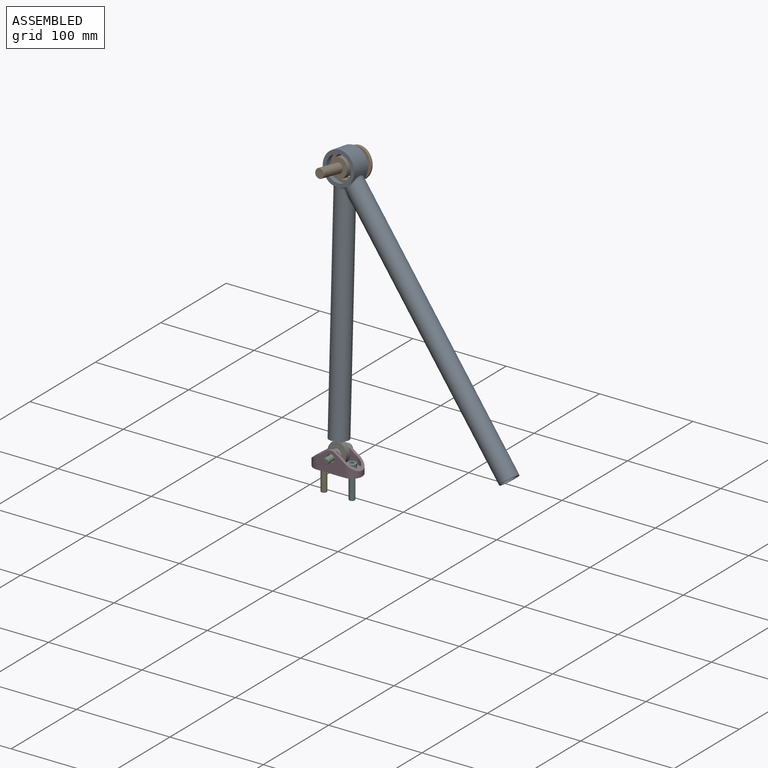
[diagram: assembled view]
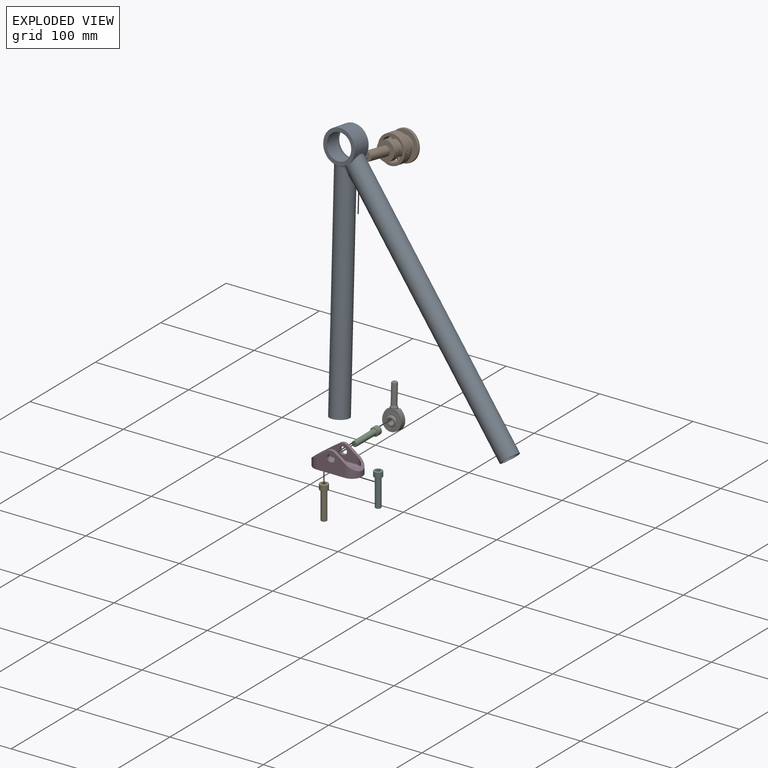
[diagram: exploded view]
GUIDED TOUR — MATED ASSEMBLY WITH SUBASSEMBLIES (Onshape document c569f687ecbf7cb7400b0703, AutoMate assembly c569f687ecbf7cb7400b0703_3082568f46f3f7c2580e98b1_21760d885458aef11b43236a_default)

This assembly has 12 component occurrences arranged in 7 top-level units: 5 individual components plus 2 subassemblies (S0, S1). The tour has two levels: first the top level, where each subassembly is treated as one rigid unit; then each subassembly is toured internally in its own section (nesting deeper than one subassembly level is flattened into its subassembly's section).

Components are labeled P0..P11 across the whole record; subassembly units are labeled S0..S1. A mate is a constraint between two units; its type names the relative motion it leaves free:
  BALL — leaves all rotation about the listed point free (a ball joint),
  CYLINDRICAL — leaves both rotation about and translation along the listed axis free,
  FASTENED — locks the two components together rigidly (no relative motion),
  PLANAR — leaves sliding in the plane through the listed point (normal = the listed direction) and rotation about that normal free,
  REVOLUTE — leaves rotation about the listed axis free (a hinge).
Axis/direction vectors are unit vectors and 'through' points are millimeter coordinates, both in the assembly's world frame.

TOP-LEVEL MATES (between units; each subassembly's internal mates are listed in its own section)
  1. FASTENED "Fastened 2": S1 <-> P3, direction (0.000, -1.000, 0.000) through (0.00, 1.00, 15.00) mm
  2. PLANAR "Planar 1": P5 <-> P7, direction (0.000, 0.000, 1.000) through (-15.00, 0.00, 5.00) mm
  3. FASTENED "Fastened 1": P5 <-> P3, direction (0.000, -1.000, 0.000) through (0.00, 11.00, 15.00) mm
  4. REVOLUTE "Revolute 1": P7 <-> P5, axis (0.000, 0.000, 1.000) through (-15.00, 0.00, 5.00) mm
  5. CYLINDRICAL "Cylindrical 1": P0 <-> S1, axis (-0.061, 0.127, 0.990) through (-0.84, 2.75, 28.66) mm
  6. REVOLUTE "Revolute 3": S0 <-> P0, axis (0.048, 0.991, -0.124) through (-15.76, 42.35, 275.18) mm

TOP-LEVEL ASSEMBLY ORDER
  1. P5 — the base component [order heuristic]
  2. S1 — core [order heuristic]
  3. P7 — core [order heuristic]
  4. P8 — core [order heuristic]
  5. P3 — core [order heuristic]
  6. S0 [order verified]
  7. P0 [order verified]
Order-tag legend:
  [order verified] — this step's position reverses a verified removal order: the component was checked to insert without passing through the ones already placed.
  [order heuristic] — the first 5 components form the assembly's core: parts whose collision-free extraction could not be verified, listed in mate-graph order.

Of the 12 component occurrences, 7 carry the full construction recipe — the FeatureScript program that regenerates the part's solid from scratch; the rest are supplied as boundary geometry only. Each toured unit is shown spotlighted twice — assembled, then exploded with a leader line back to its socket (green = recipe-attached component, orange = geometry-only, blue = subassembly unit; the rest desaturated gray).
NOTE — this tour is split across 2 documents so each fits a 32k-token context. This is document 1: the component sections continue in the remaining 1 document, each repeating the header above.
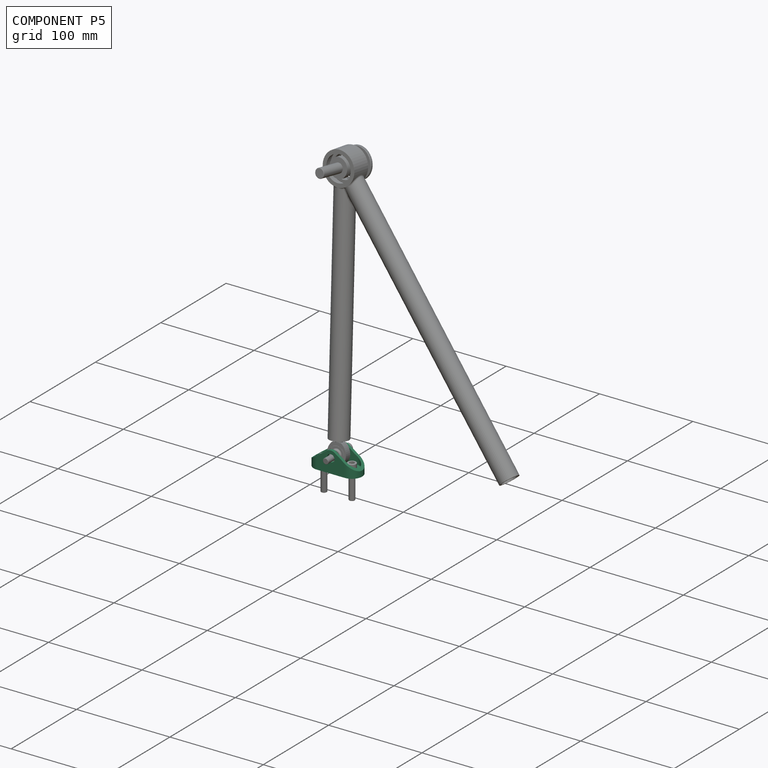
[diagram: component P5 — assembled]
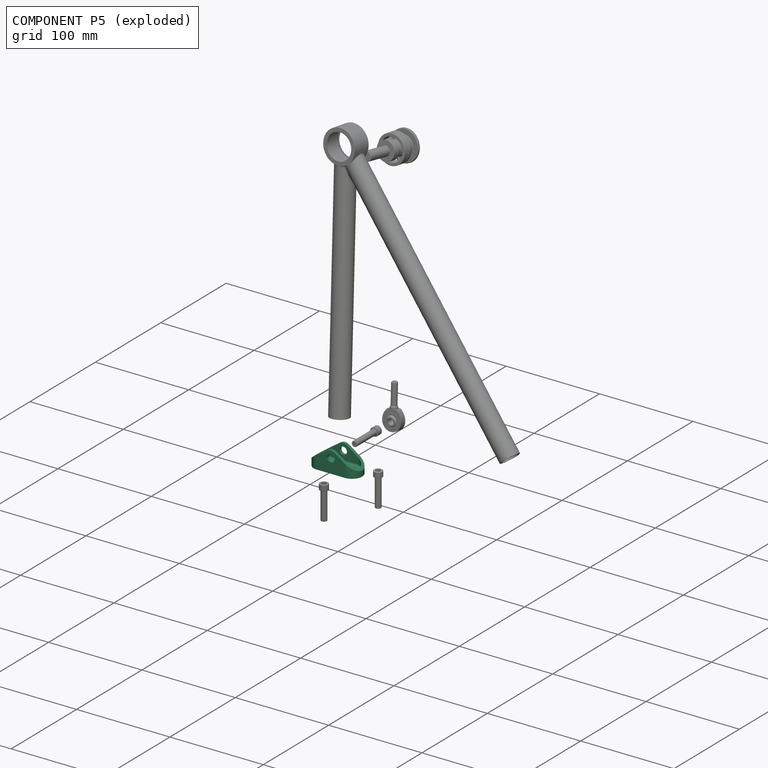
[diagram: component P5 — exploded]
COMPONENT P5 — recipe-attached (CADFS 00620207, mesh-verified: the recipe's output STEP matches this component's geometry to below the mesh-comparison resolution (tessellation chordal tolerance ~0.0911 mm)).
Held by: PLANAR mate "Planar 1" to P7; FASTENED mate "Fastened 1" to P3; REVOLUTE mate "Revolute 1" to P7.
Construction recipe (FeatureScript — the CAD program that rebuilds this solid; sketch coordinates are in the units given by the * unit suffixes, e.g. mm):

FeatureScript 1511;
import(path : "onshape/std/geometry.fs", version : "1511.0");
import(path : "onshape/std/common.fs", version : "1511.0");
const mm = millimeter;
const VERTEX = EntityType.VERTEX;
const EDGE = EntityType.EDGE;
const FACE = EntityType.FACE;
const BODY = EntityType.BODY;
function v(x, y){return vector(x, y);}
function OD(order){return orderDisambiguation(order);}
function OSD(set){return originalSetDisambiguation(set);}
function TD(topology){return topologyDisambiguation(topology);}
function TDD(query){return trueDependencyDisambiguation(query);}
function sQuery(a, b, c) {return sketchEntityQuery(a, b, c);}

annotation { "Feature Type Name" : "Feature", "Feature Type Description" : "" }
export const myFeature = defineFeature(function(context is Context, id is Id, definition is map)
    precondition{}
    {
        {
            var Q0;
            Q0=qCreatedBy(makeId("Top.planeOp"),FACE);
            var sketch = newSketch(context, id + "F0", { "sketchPlane" : qUnion([Q0])});
            skLineSegment(sketch, "E0", {"start": v(-15, 0) * mm, "end": v(15, 0) * mm});
            skArc(sketch, "E1.0.startCap", {"start": v(-15, -11) * mm, "mid": v(-26, 0) * mm, "end": v(-15, 11) * mm});
            skArc(sketch, "E1.0.endCap", {"start": v(15, 11) * mm, "mid": v(26, 0) * mm, "end": v(15, -11) * mm});
            skLineSegment(sketch, "E1.0.left", {"start": v(-15, 11) * mm, "end": v(15, 11) * mm});
            skLineSegment(sketch, "E1.0.right", {"start": v(-15, -11) * mm, "end": v(15, -11) * mm});
            skCircle(sketch, "E2", {"center": v(-15, 0) * mm, "radius": 3.09 * mm});
            skCircle(sketch, "E3", {"center": v(15, 0) * mm, "radius": 3.1 * mm});
            skCircle(sketch, "E4", {"center": v(0, 0) * mm, "radius": 7 * mm});
            skSolve(sketch);
        }
        {
            var Q0;
            Q0 = qSketchRegion(id + "F0", true);
            extrude(context, id + "F1", {"entities" : qUnion([Q0]), "depth" : 25 * mm, "offsetDistance" : 25 * mm});
        }
        {
            var Q0;
            Q0=makeQuery(id+"F1.opExtrude","SWEPT_FACE",FACE,{"disambiguationData":[OSD([sQuery(id+"F0.wireOp",EDGE,"E1.0.right")])]});
            var sketch = newSketch(context, id + "F2", { "sketchPlane" : qUnion([Q0])});
            skLineSegment(sketch, "E5", {"start": v(0, 0) * mm, "end": v(0, 15) * mm, "construction": true});
            skPoint(sketch, "E5.endSnap0", {"position": v(0, 25) * mm});
            skCircle(sketch, "E6", {"center": v(0, 15) * mm, "radius": 7.5 * mm, "construction": true});
            skLineSegment(sketch, "E7", {"start": v(-26, 25) * mm, "end": v(-26, 6) * mm});
            skLineSegment(sketch, "E8", {"start": v(-26, 6) * mm, "end": v(-4.3, 21.15) * mm});
            skLineSegment(sketch, "E9", {"start": v(-26, 25) * mm, "end": v(26, 25) * mm});
            skLineSegment(sketch, "E10", {"start": v(26, 25) * mm, "end": v(26, 6) * mm});
            skLineSegment(sketch, "E11", {"start": v(26, 6) * mm, "end": v(4.3, 21.15) * mm});
            skArc(sketch, "E12", {"start": v(4.3, 21.15) * mm, "mid": v(0, 22.5) * mm, "end": v(-4.3, 21.15) * mm});
            skCircle(sketch, "E13", {"center": v(0, 15) * mm, "radius": 4 * mm});
            skSolve(sketch);
        }
        {
            var Q0;
            {var subQ0=sQuery(id+"F2.wireOp",EDGE,"E12");Q0=makeQuery(id+"F2.imprint","IMPRINT",FACE,{"disambiguationData":[TD([[makeQuery(id+"F2.imprint","IMPRINT",EDGE,{"derivedFrom":subQ0}),-1.0]])]});}
            var Q1;
            Q1 = qSketchRegion(id + "F2", true);
            extrude(context, id + "F3", {"entities" : qUnion([Q0, Q1]), "operationType" : NewBodyOperationType.REMOVE, "oppositeDirection" : true, "depth" : 25 * mm, "offsetDistance" : 25 * mm});
        }
        {
            var Q0;
            Q0=makeQuery(id+"F1.opExtrude","CAP_FACE",FACE,{"disambiguationData":[OSD([sQuery(id+"F0.wireOp",EDGE,"E1.0.startCap"),sQuery(id+"F0.wireOp",EDGE,"E1.0.endCap"),sQuery(id+"F0.wireOp",EDGE,"E1.0.left"),sQuery(id+"F0.wireOp",EDGE,"E1.0.right"),sQuery(id+"F0.wireOp",EDGE,"E2"),sQuery(id+"F0.wireOp",EDGE,"E3")])],"isStart":true});
            cPlane(context, id + "F4", {"entities" : qUnion([Q0]), "cplaneType" : CPlaneType.OFFSET, "offset" : 5 * mm, "oppositeDirection" : true, "width" : 150 * mm, "height" : 150 * mm});
        }
        {
            var Q0;
            Q0=qCreatedBy(id+"F4.planeOp",FACE);
            var sketch = newSketch(context, id + "F5", { "sketchPlane" : qUnion([Q0])});
            skArc(sketch, "E14.0", {"start": v(15, -8) * mm, "mid": v(23, 0) * mm, "end": v(15, 8) * mm});
            skLineSegment(sketch, "E14.1", {"start": v(-15, -8) * mm, "end": v(15, -8) * mm});
            skArc(sketch, "E14.2", {"start": v(-15, 8) * mm, "mid": v(-23, 0) * mm, "end": v(-15, -8) * mm});
            skLineSegment(sketch, "E14.3", {"start": v(15, 8) * mm, "end": v(-15, 8) * mm});
            skSolve(sketch);
        }
        {
            var Q0;
            Q0 = qSketchRegion(id + "F5", true);
            extrude(context, id + "F6", {"entities" : qUnion([Q0]), "operationType" : NewBodyOperationType.REMOVE, "oppositeDirection" : true, "depth" : 25 * mm, "offsetDistance" : 25 * mm});
        }
        {
            var Q0;
            Q0=makeQuery(id+"F6.boolean.opBoolean","COPY",EDGE,{"derivedFrom":makeQuery(id+"F6.opExtrude","CAP_EDGE",EDGE,{"disambiguationData":[OSD([sQuery(id+"F5.wireOp",EDGE,"E14.3")])],"isStart":true})});
            fillet(context, id + "F7", {"entities" : qUnion([Q0]), "radius" : 1 * mm, "tangentPropagation" : true, "allowEdgeOverflow" : false});
        }
    });
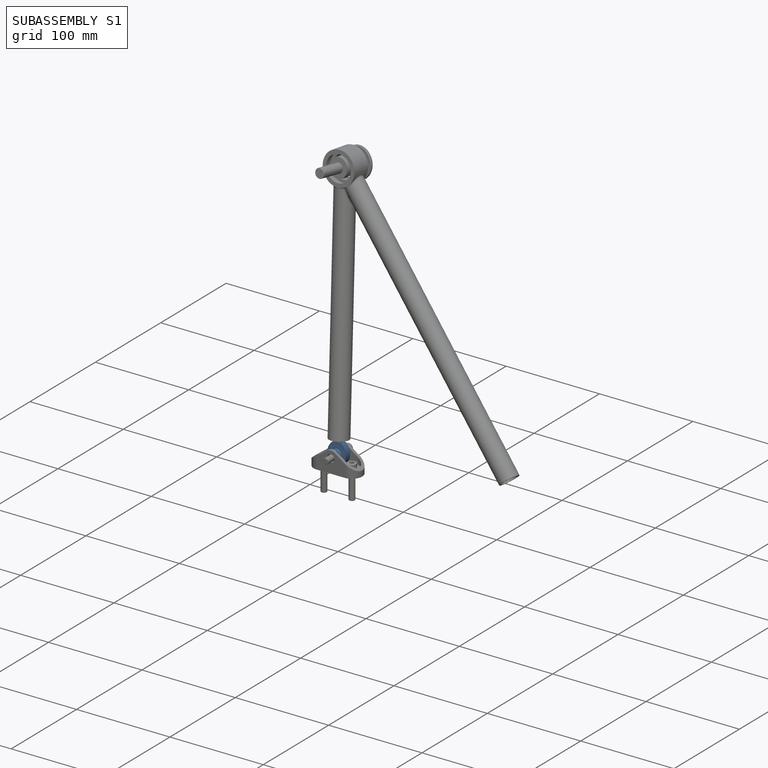
[diagram: subassembly S1 — assembled]
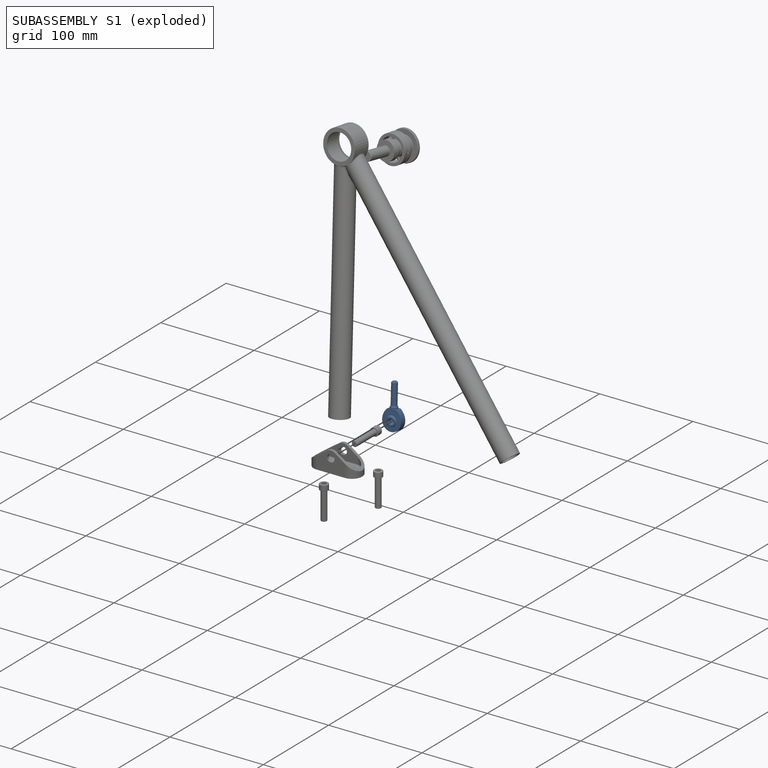
[diagram: subassembly S1 — exploded]
SUBASSEMBLY S1 — 2 components (P9, P10), of which 0 recipe-attached; toured below.
Held by: FASTENED mate "Fastened 2" to P3; CYLINDRICAL mate "Cylindrical 1" to P0.
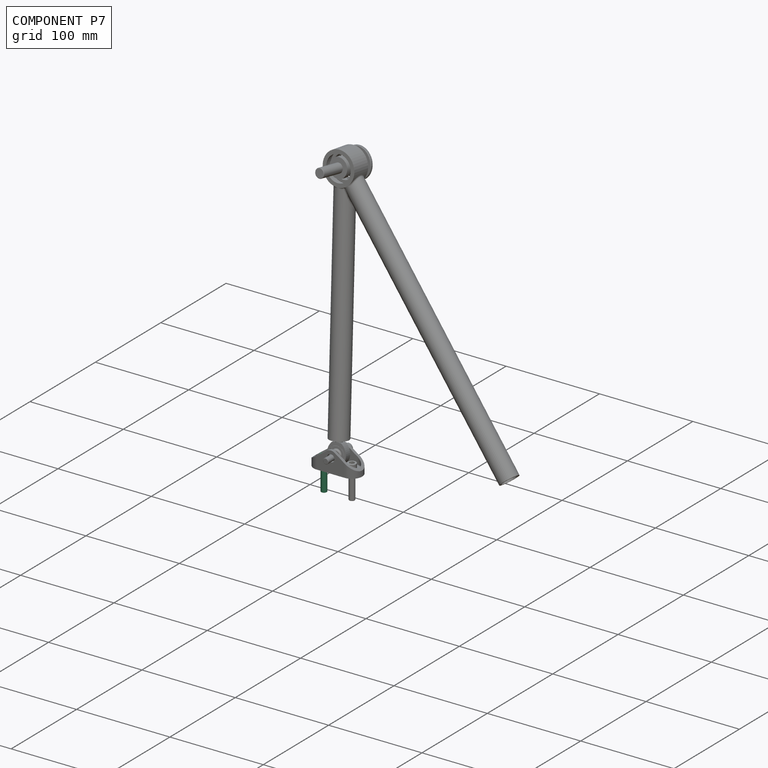
[diagram: component P7 — assembled]
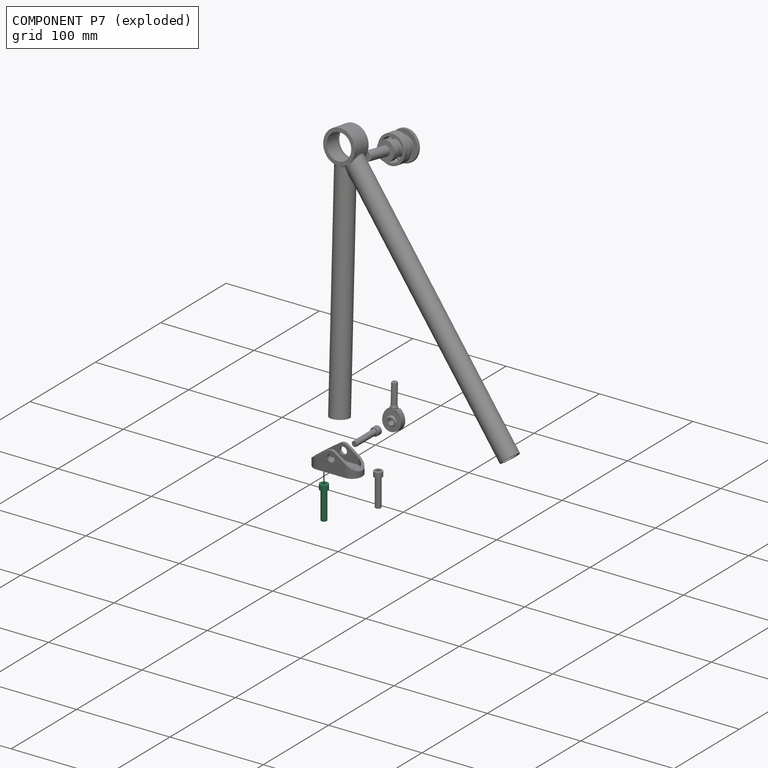
[diagram: component P7 — exploded]
COMPONENT P7 — same part as P3 (CADFS 00620204); its construction recipe is shown at P3.
Held by: PLANAR mate "Planar 1" to P5; REVOLUTE mate "Revolute 1" to P5.
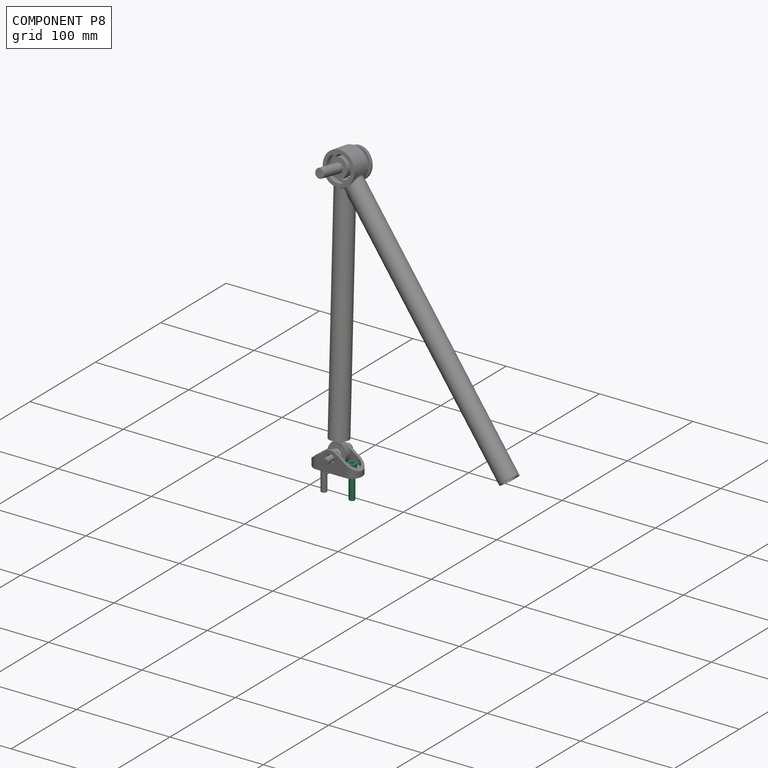
[diagram: component P8 — assembled]
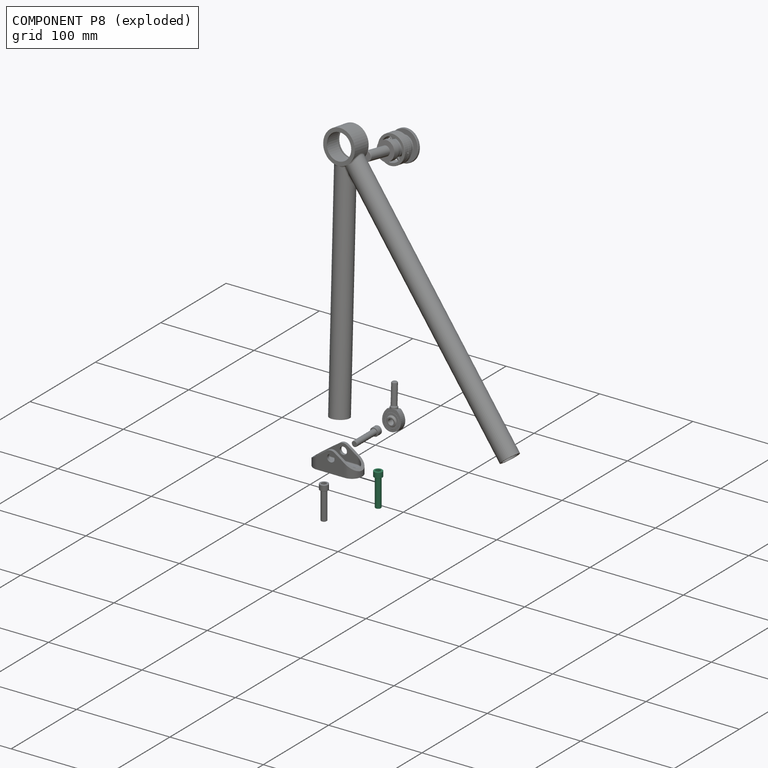
[diagram: component P8 — exploded]
COMPONENT P8 — same part as P3 (CADFS 00620204); its construction recipe is shown at P3.
Held by: no mates (free).
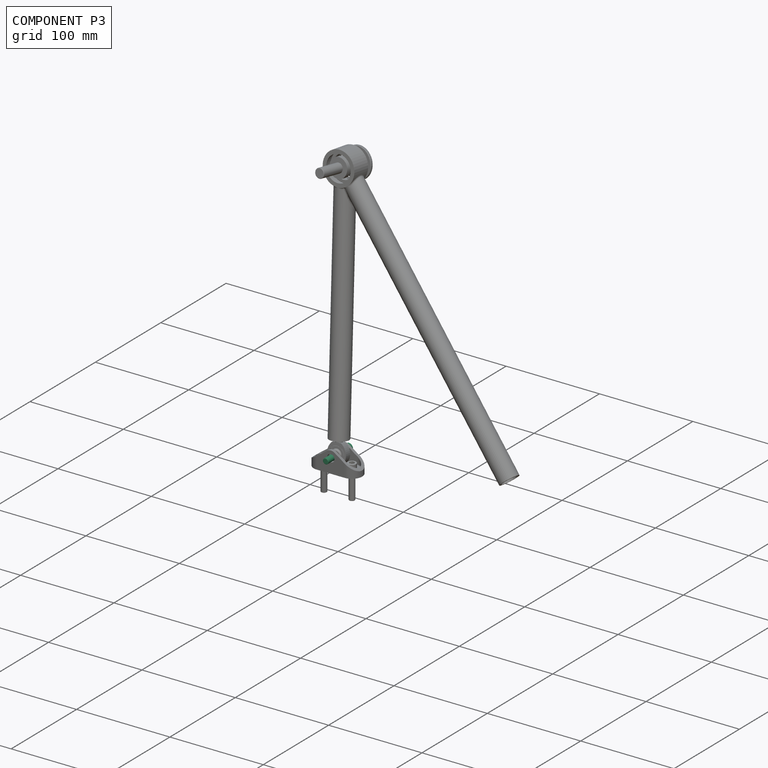
[diagram: component P3 — assembled]
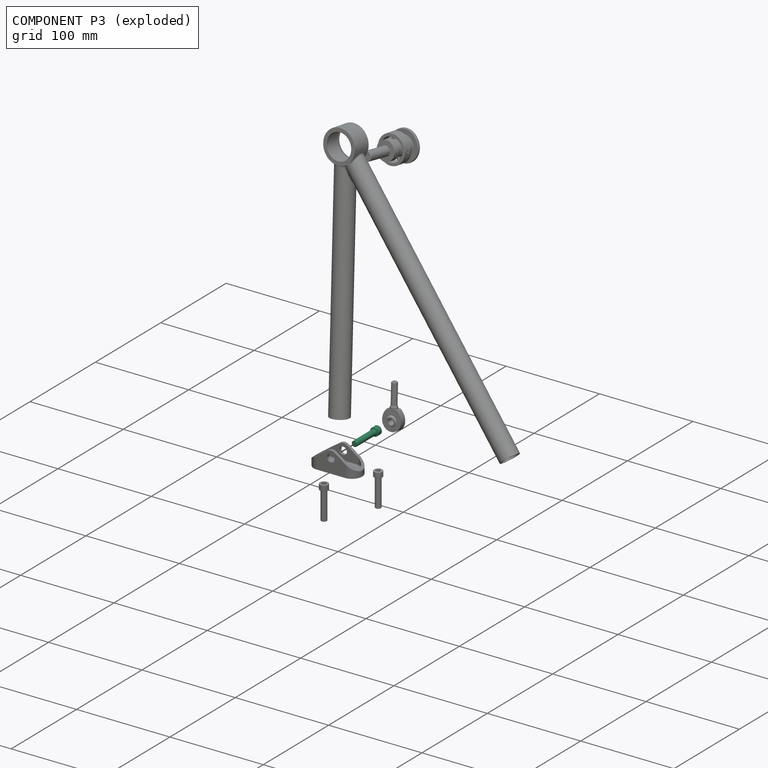
[diagram: component P3 — exploded]
COMPONENT P3 — recipe-attached (CADFS 00620204, mesh-verified: the recipe's output STEP matches this component's geometry to below the mesh-comparison resolution (tessellation chordal tolerance ~0.0572 mm)).
Held by: FASTENED mate "Fastened 2" to P9; FASTENED mate "Fastened 1" to P5.
Construction recipe (FeatureScript — the CAD program that rebuilds this solid; sketch coordinates are in the units given by the * unit suffixes, e.g. mm):

FeatureScript 1511;
import(path : "onshape/std/geometry.fs", version : "1511.0");
import(path : "onshape/std/common.fs", version : "1511.0");
const mm = millimeter;
const VERTEX = EntityType.VERTEX;
const EDGE = EntityType.EDGE;
const FACE = EntityType.FACE;
const BODY = EntityType.BODY;
function v(x, y){return vector(x, y);}
function OD(order){return orderDisambiguation(order);}
function OSD(set){return originalSetDisambiguation(set);}
function TD(topology){return topologyDisambiguation(topology);}
function TDD(query){return trueDependencyDisambiguation(query);}
function sQuery(a, b, c) {return sketchEntityQuery(a, b, c);}

annotation { "Feature Type Name" : "Feature", "Feature Type Description" : "" }
export const myFeature = defineFeature(function(context is Context, id is Id, definition is map)
    precondition{}
    {
        {
            var Q0;
            Q0=qCreatedBy(makeId("Right.planeOp"),FACE);
            var sketch = newSketch(context, id + "F0", { "sketchPlane" : qUnion([Q0])});
            skLineSegment(sketch, "E0", {"start": v(0, 0) * mm, "end": v(0, -36) * mm, "construction": true});
            skLineSegment(sketch, "E1", {"start": v(0, 0) * mm, "end": v(-4.45, 0) * mm});
            skLineSegment(sketch, "E2", {"start": v(-4.45, 0) * mm, "end": v(-4.45, -6) * mm});
            skLineSegment(sketch, "E3", {"start": v(-4.45, -6) * mm, "end": v(-3, -6) * mm});
            skLineSegment(sketch, "E4", {"start": v(-3, -6) * mm, "end": v(-3, -36) * mm});
            skLineSegment(sketch, "E5", {"start": v(-3, -36) * mm, "end": v(0, -36) * mm});
            skLineSegment(sketch, "E6", {"start": v(0, 0) * mm, "end": v(0, -36) * mm});
            skSolve(sketch);
        }
        {
            var Q0;
            Q0=makeQuery(id+"F0.imprint","IMPRINT",FACE,{"disambiguationData":[TD([[makeQuery(id+"F0.imprint","IMPRINT",EDGE,{"derivedFrom":sQuery(id+"F0.wireOp",EDGE,"E1")}),1.0]])]});
            var Q1;
            Q1=sQuery(id+"F0.wireOp",EDGE,"E6");
            revolve(context, id + "F1", {"entities" : qUnion([Q0]), "axis" : qUnion([Q1]), "revolveType" : RevolveType.FULL});
        }
        {
            var Q0;
            Q0=makeQuery(id+"F1.opRevolve","SWEPT_FACE",FACE,{"disambiguationData":[OSD([sQuery(id+"F0.wireOp",EDGE,"E1")])]});
            var sketch = newSketch(context, id + "F2", { "sketchPlane" : qUnion([Q0])});
            skCircle(sketch, "E7.cCircle", {"center": v(0, 0) * mm, "radius": 2.5 * mm, "construction": true});
            skLineSegment(sketch, "E7.0", {"start": v(-2.89, -0.02) * mm, "end": v(-1.46, 2.49) * mm});
            skLineSegment(sketch, "E7.1", {"start": v(-1.46, 2.49) * mm, "end": v(1.42, 2.51) * mm});
            skLineSegment(sketch, "E7.2", {"start": v(1.42, 2.51) * mm, "end": v(2.89, 0.02) * mm});
            skLineSegment(sketch, "E7.3", {"start": v(2.89, 0.02) * mm, "end": v(1.46, -2.49) * mm});
            skLineSegment(sketch, "E7.4", {"start": v(1.46, -2.49) * mm, "end": v(-1.42, -2.51) * mm});
            skLineSegment(sketch, "E7.5", {"start": v(-1.42, -2.51) * mm, "end": v(-2.89, -0.02) * mm});
            skPoint(sketch, "E7.0.midPoint", {"position": v(-2.18, 1.23) * mm});
            skSolve(sketch);
        }
        {
            var Q0;
            Q0=makeQuery(id+"F2.imprint","IMPRINT",FACE,{"disambiguationData":[TD([[makeQuery(id+"F2.imprint","IMPRINT",EDGE,{"derivedFrom":sQuery(id+"F2.wireOp",EDGE,"E7.0")}),-1.0]])]});
            extrude(context, id + "F3", {"entities" : qUnion([Q0]), "operationType" : NewBodyOperationType.REMOVE, "oppositeDirection" : true, "depth" : 8 * mm, "offsetDistance" : 25 * mm});
        }
        {
            var Q0;
            Q0=makeQuery(id+"F1.opRevolve","SWEPT_EDGE",EDGE,{"disambiguationData":[OSD([sQuery(id+"F0.wireOp",EDGE,"E1"),sQuery(id+"F0.wireOp",EDGE,"E2")])]});
            var Q1;
            Q1=makeQuery(id+"F1.opRevolve","SWEPT_EDGE",EDGE,{"disambiguationData":[OSD([sQuery(id+"F0.wireOp",EDGE,"E2"),sQuery(id+"F0.wireOp",EDGE,"E3")])]});
            fillet(context, id + "F4", {"entities" : qUnion([Q0, Q1]), "radius" : 0.4 * mm, "tangentPropagation" : true, "allowEdgeOverflow" : false});
        }
        {
            var Q0;
            Q0=makeQuery(id+"F1.opRevolve","SWEPT_EDGE",EDGE,{"disambiguationData":[OSD([sQuery(id+"F0.wireOp",EDGE,"E3"),sQuery(id+"F0.wireOp",EDGE,"E4")])]});
            var Q1;
            Q1=makeQuery(id+"F1.opRevolve","SWEPT_EDGE",EDGE,{"disambiguationData":[OSD([sQuery(id+"F0.wireOp",EDGE,"E4"),sQuery(id+"F0.wireOp",EDGE,"E5")])]});
            fillet(context, id + "F5", {"entities" : qUnion([Q0, Q1]), "radius" : 0.5 * mm, "tangentPropagation" : true, "allowEdgeOverflow" : false});
        }
    });
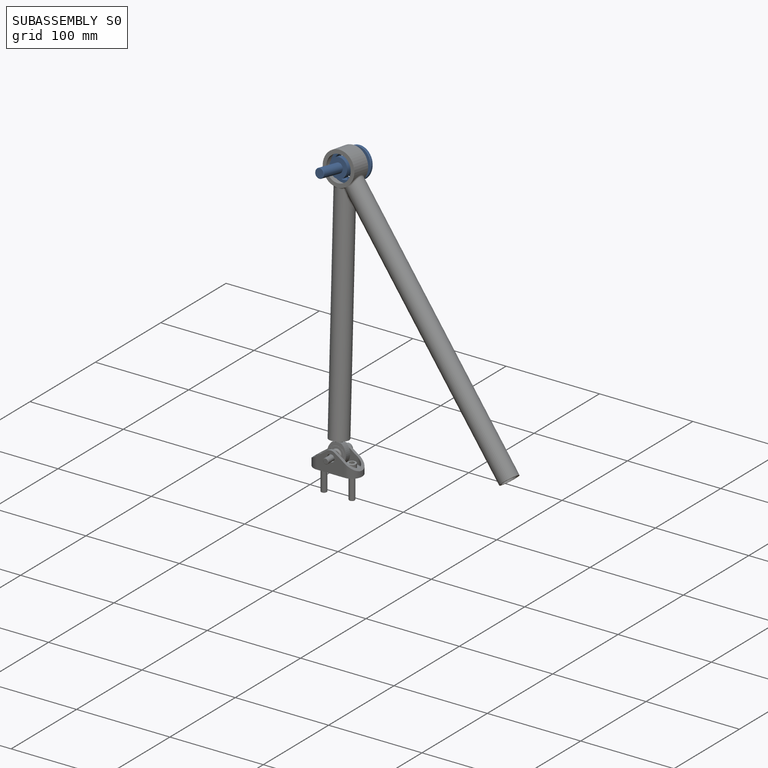
[diagram: subassembly S0 — assembled]
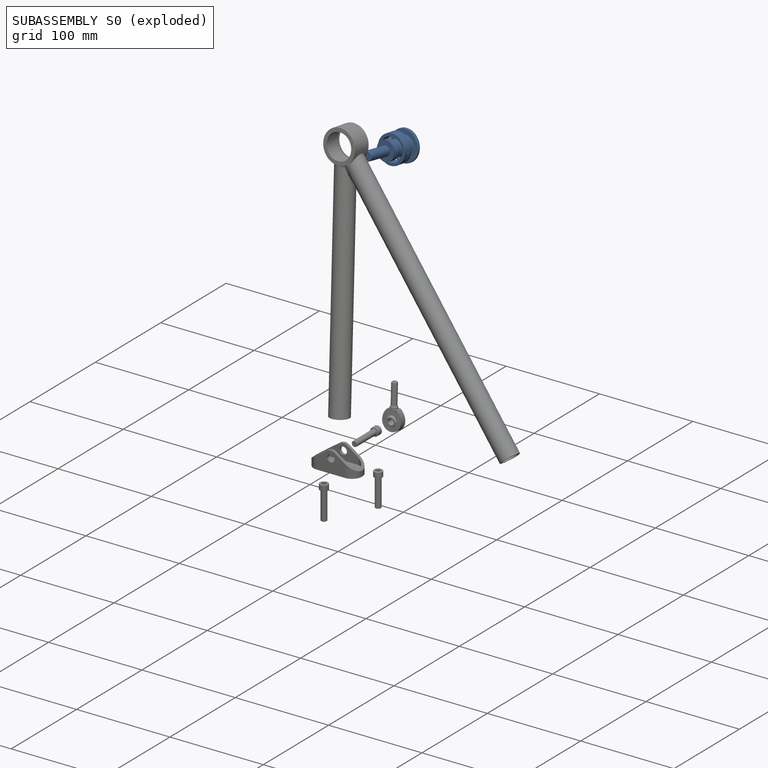
[diagram: subassembly S0 — exploded]
SUBASSEMBLY S0 — 5 components (P1, P2, P4, P6, P11), of which 3 recipe-attached; toured below.
Held by: REVOLUTE mate "Revolute 3" to P0.
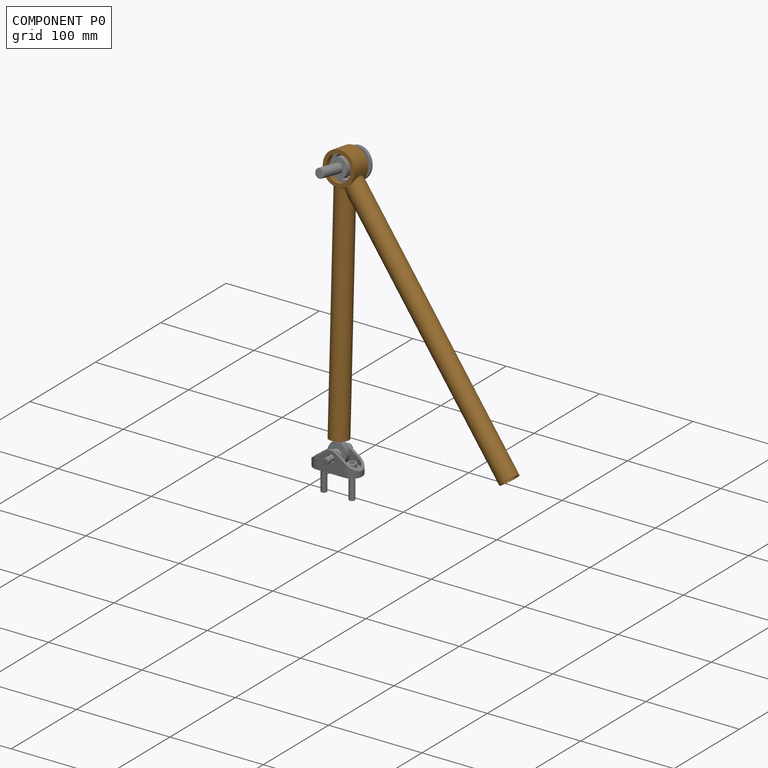
[diagram: component P0 — assembled]
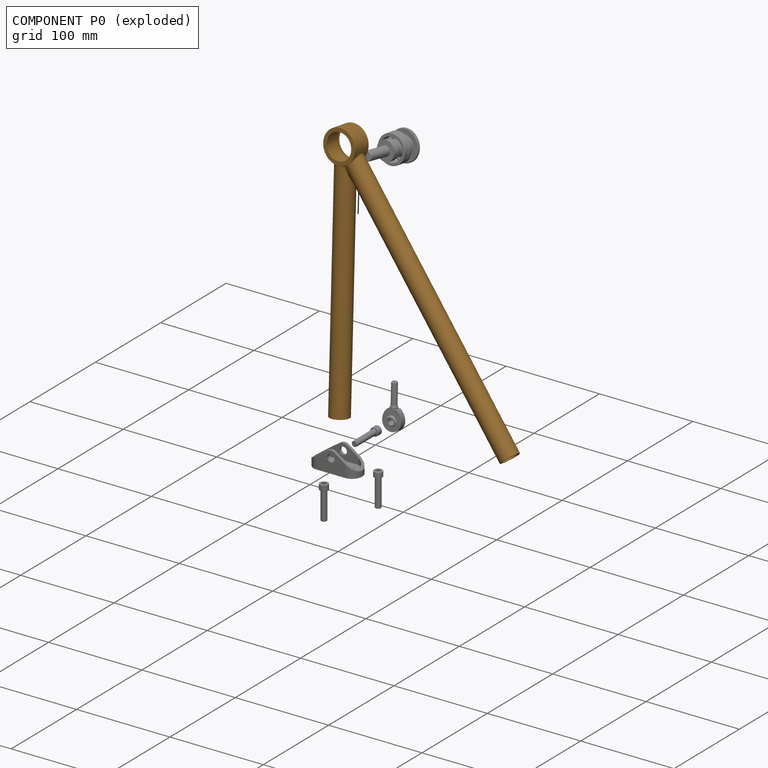
[diagram: component P0 — exploded]
COMPONENT P0 — geometry summary (no construction recipe available for this part):
  bounding box: 273.7 x 214.1 x 22.1 mm
  B-rep topology: 1 solid, 42 faces, 168 edges
  volume: 65204 mm^3 (5% of its bounding box)
  symmetry: mirror-symmetric across its z mid-plane
Held by: CYLINDRICAL mate "Cylindrical 1" to P9; REVOLUTE mate "Revolute 3" to P1.
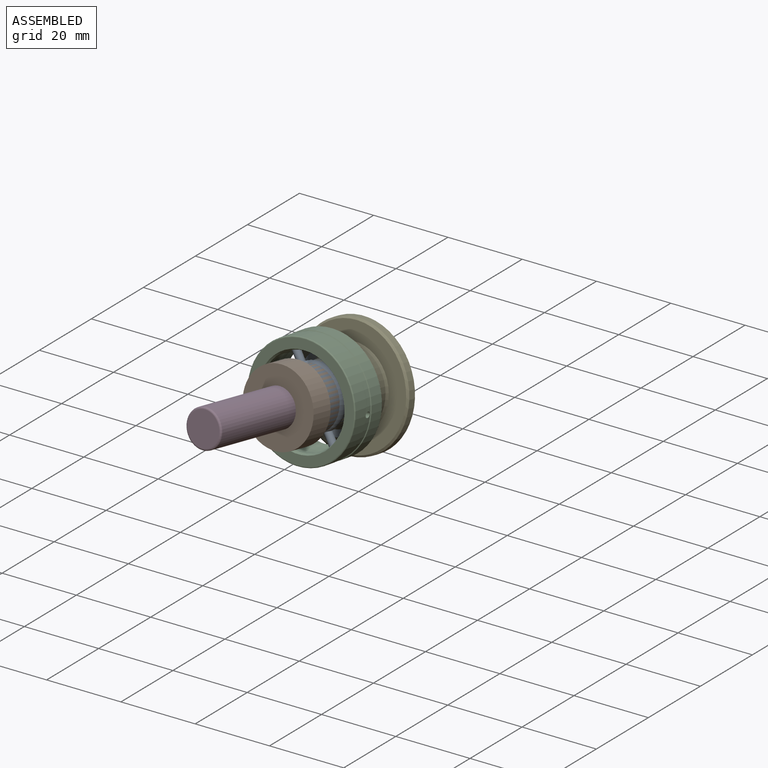
[diagram: subassembly S0 — assembled view]
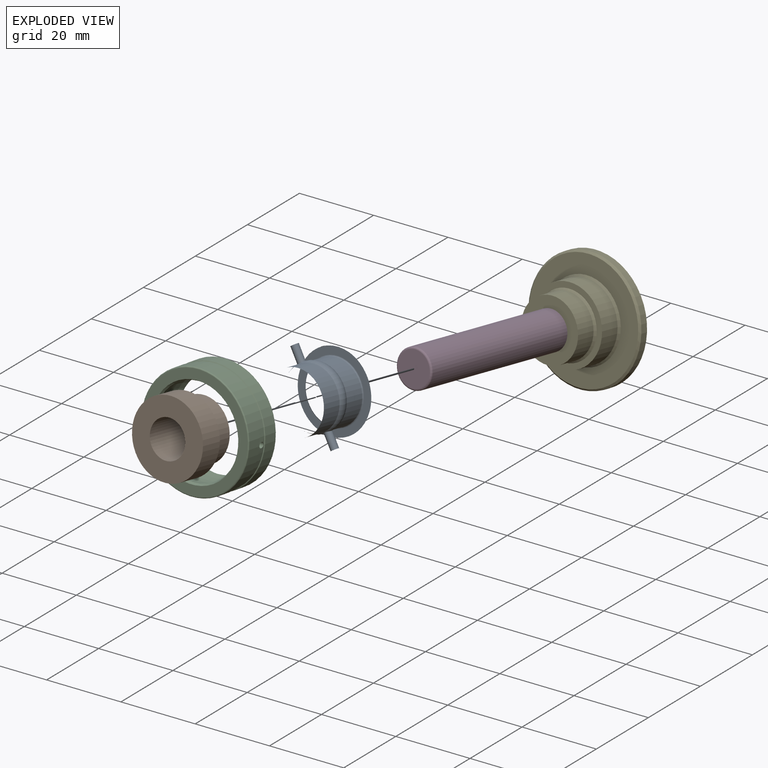
[diagram: subassembly S0 — exploded view]
SUBASSEMBLY S0 TOUR — 5 components, shown here in isolation at its own camera.

INTERNAL MATES
  1. PLANAR "Planar 2": P1 <-> P2, direction (-0.070, -0.984, 0.162) through (-16.49, 30.51, 276.94) mm
  2. REVOLUTE "Revolute 1": P11 <-> P6, axis (-0.070, -0.984, 0.162) through (-15.29, 47.24, 274.19) mm
  3. CYLINDRICAL "Cylindrical 1": P1 <-> P11, axis (0.070, 0.984, -0.162) through (-15.50, 44.29, 274.67) mm
  4. PLANAR "Planar 1": P11 <-> P1, direction (-0.070, -0.984, 0.162) through (-15.50, 44.29, 274.67) mm
  5. CYLINDRICAL "Cylindrical 2": P1 <-> P2, axis (-0.070, -0.984, 0.162) through (-16.49, 30.51, 276.94) mm
  6. BALL "Ball 1": P1 <-> P4, direction (0.070, 0.984, -0.162) through (-15.99, 37.40, 275.80) mm
  7. CYLINDRICAL "Cylindrical 2": P1 <-> P2, axis (-0.070, -0.984, 0.162) through (-16.49, 30.51, 276.94) mm
  8. CYLINDRICAL "Cylindrical 1": P1 <-> P11, axis (0.070, 0.984, -0.162) through (-15.50, 44.29, 274.67) mm
  9. PLANAR "Planar 1": P11 <-> P1, direction (-0.070, -0.984, 0.162) through (-15.50, 44.29, 274.67) mm
  10. REVOLUTE "Revolute 1": P11 <-> P6, axis (-0.070, -0.984, 0.162) through (-15.29, 47.24, 274.19) mm
  11. PLANAR "Planar 2": P1 <-> P2, direction (-0.070, -0.984, 0.162) through (-16.49, 30.51, 276.94) mm
  12. BALL "Ball 1": P1 <-> P4, direction (0.070, 0.984, -0.162) through (-15.99, 37.40, 275.80) mm

ASSEMBLY ORDER (within the subassembly)
  1. P1 — the base component [order heuristic]
  2. P2 [order heuristic]
  3. P4 [order heuristic]
  4. P11 [order heuristic]
  5. P6 [order heuristic]
Order-tag legend:
  [order heuristic] — this assembly is geometrically interlocked (no collision-free removal order exists), so components are listed in mate-graph order; insertion feasibility is not verified.
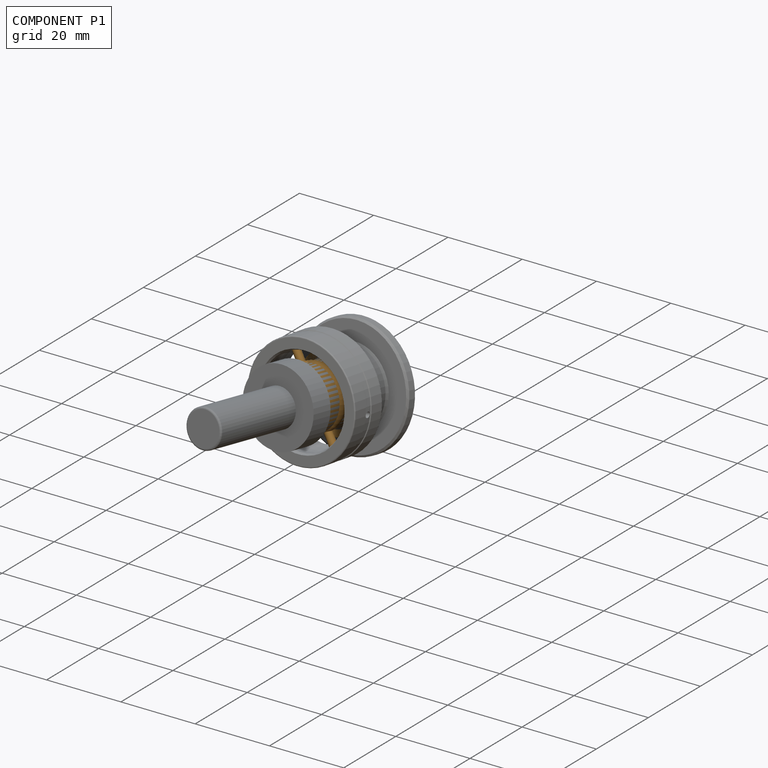
[diagram: component P1 — assembled]
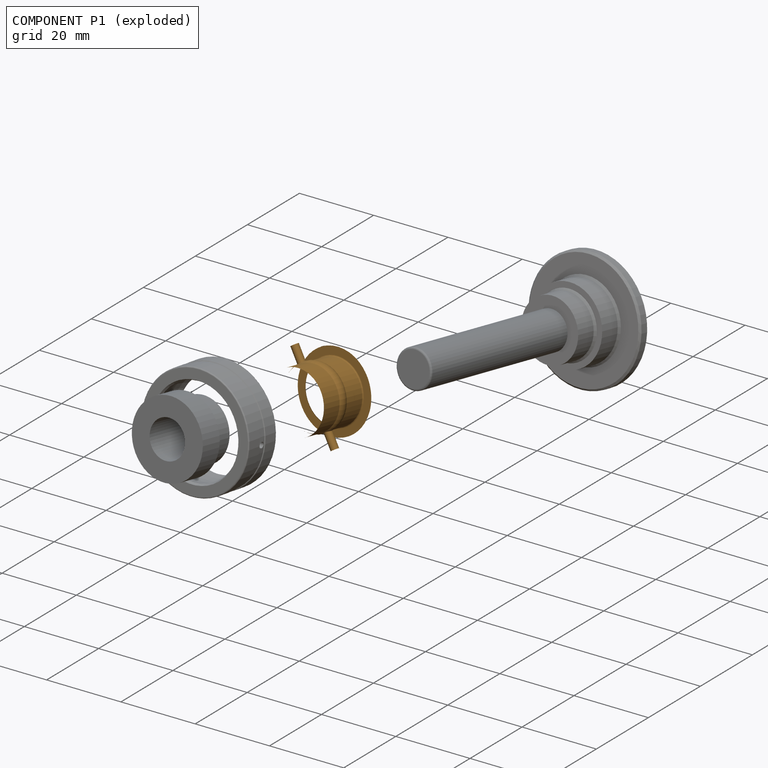
[diagram: component P1 — exploded]
COMPONENT P1 — geometry summary (no construction recipe available for this part):
  bounding box: 25.0 x 25.0 x 25.0 mm
  B-rep topology: 1 solid, 10 faces, 64 edges
  volume: -7158 mm^3 (-46% of its bounding box)
  symmetry: 2-fold rotationally symmetric about the z axis; mirror-symmetric across its x mid-plane, y mid-plane
Held by: PLANAR mate "Planar 2" to P2; CYLINDRICAL mate "Cylindrical 1" to P11; PLANAR mate "Planar 1" to P11; CYLINDRICAL mate "Cylindrical 2" to P2; BALL mate "Ball 1" to P4; CYLINDRICAL mate "Cylindrical 2" to P2; CYLINDRICAL mate "Cylindrical 1" to P11; PLANAR mate "Planar 1" to P11; PLANAR mate "Planar 2" to P2; BALL mate "Ball 1" to P4.
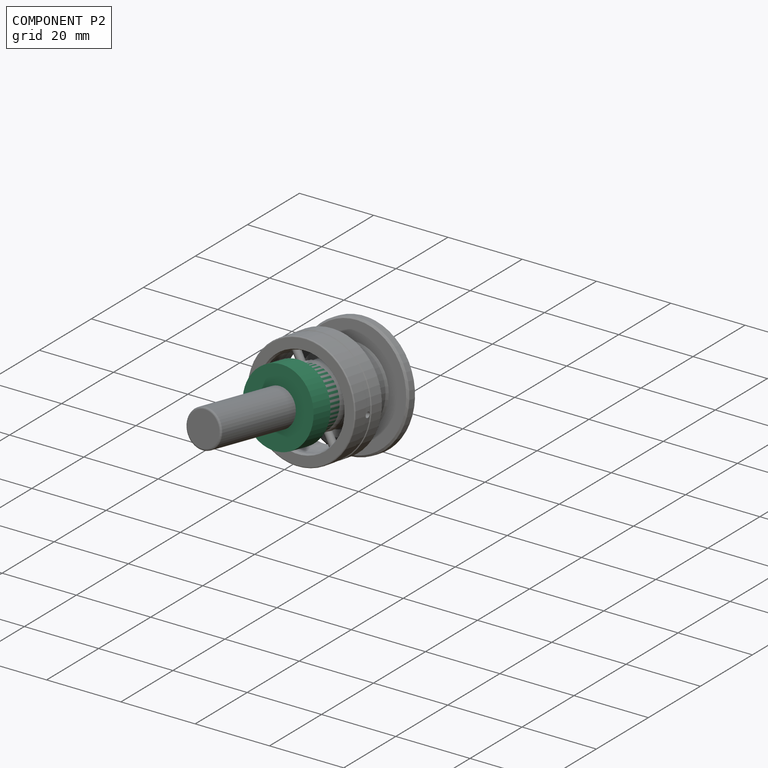
[diagram: component P2 — assembled]
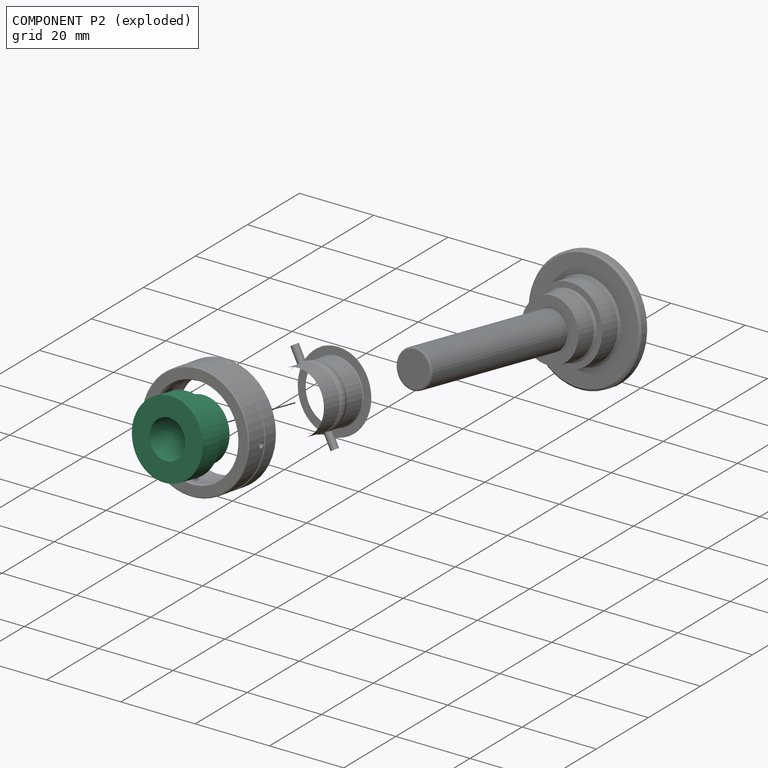
[diagram: component P2 — exploded]
COMPONENT P2 — recipe-attached (CADFS 00620206, mesh-verified: the recipe's output STEP matches this component's geometry to below the mesh-comparison resolution (tessellation chordal tolerance ~0.0461 mm)).
Held by: PLANAR mate "Planar 2" to P1; CYLINDRICAL mate "Cylindrical 2" to P1; CYLINDRICAL mate "Cylindrical 2" to P1; PLANAR mate "Planar 2" to P1.
Construction recipe (FeatureScript — the CAD program that rebuilds this solid; sketch coordinates are in the units given by the * unit suffixes, e.g. mm):

FeatureScript 1511;
import(path : "onshape/std/geometry.fs", version : "1511.0");
import(path : "onshape/std/common.fs", version : "1511.0");
const mm = millimeter;
const VERTEX = EntityType.VERTEX;
const EDGE = EntityType.EDGE;
const FACE = EntityType.FACE;
const BODY = EntityType.BODY;
function v(x, y){return vector(x, y);}
function OD(order){return orderDisambiguation(order);}
function OSD(set){return originalSetDisambiguation(set);}
function TD(topology){return topologyDisambiguation(topology);}
function TDD(query){return trueDependencyDisambiguation(query);}
function sQuery(a, b, c) {return sketchEntityQuery(a, b, c);}

annotation { "Feature Type Name" : "Feature", "Feature Type Description" : "" }
export const myFeature = defineFeature(function(context is Context, id is Id, definition is map)
    precondition{}
    {
        {
            var Q0;
            Q0=qCreatedBy(makeId("Right.planeOp"),FACE);
            var sketch = newSketch(context, id + "F0", { "sketchPlane" : qUnion([Q0])});
            skLineSegment(sketch, "E0", {"start": v(0, 0) * mm, "end": v(0, 21.96) * mm, "construction": true});
            skLineSegment(sketch, "E1", {"start": v(-10, 0) * mm, "end": v(-10, 6) * mm});
            skLineSegment(sketch, "E2", {"start": v(-10, 6) * mm, "end": v(-8, 6) * mm});
            skLineSegment(sketch, "E3", {"start": v(-8, 6) * mm, "end": v(-8, 12) * mm});
            skLineSegment(sketch, "E4", {"start": v(-8, 12) * mm, "end": v(-5, 12) * mm});
            skLineSegment(sketch, "E5", {"start": v(-5, 12) * mm, "end": v(-5, 0) * mm});
            skLineSegment(sketch, "E6", {"start": v(-5, 0) * mm, "end": v(-10, 0) * mm});
            skSolve(sketch);
        }
        {
            var Q0;
            Q0=makeQuery(id+"F0.imprint","IMPRINT",FACE,{"disambiguationData":[TD([[makeQuery(id+"F0.imprint","IMPRINT",EDGE,{"derivedFrom":sQuery(id+"F0.wireOp",EDGE,"E1")}),-1.0]])]});
            var Q1;
            Q1=sQuery(id+"F0.wireOp",EDGE,"E0");
            revolve(context, id + "F1", {"entities" : qUnion([Q0]), "axis" : qUnion([Q1]), "revolveType" : RevolveType.FULL});
        }
    });
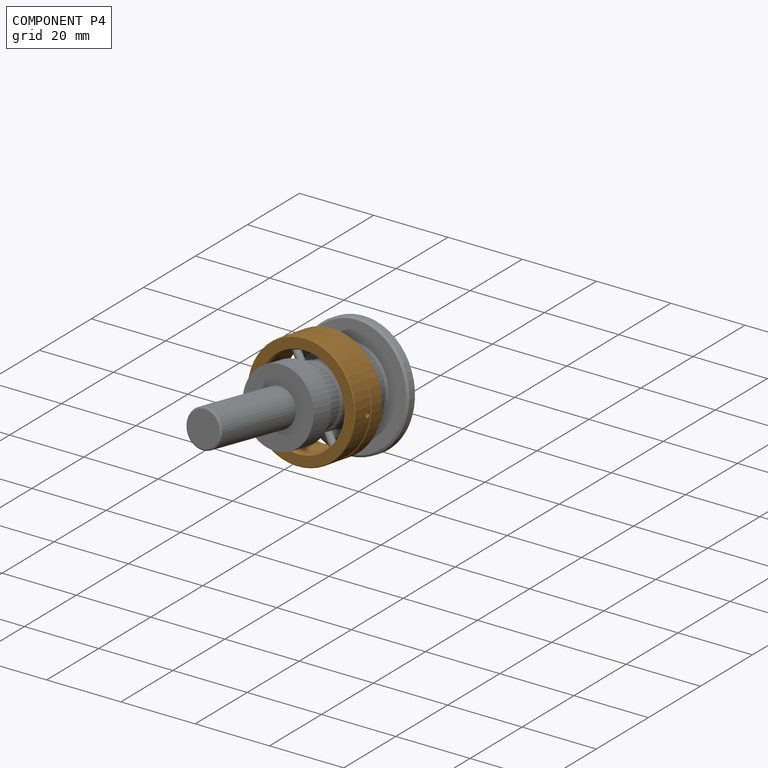
[diagram: component P4 — assembled]
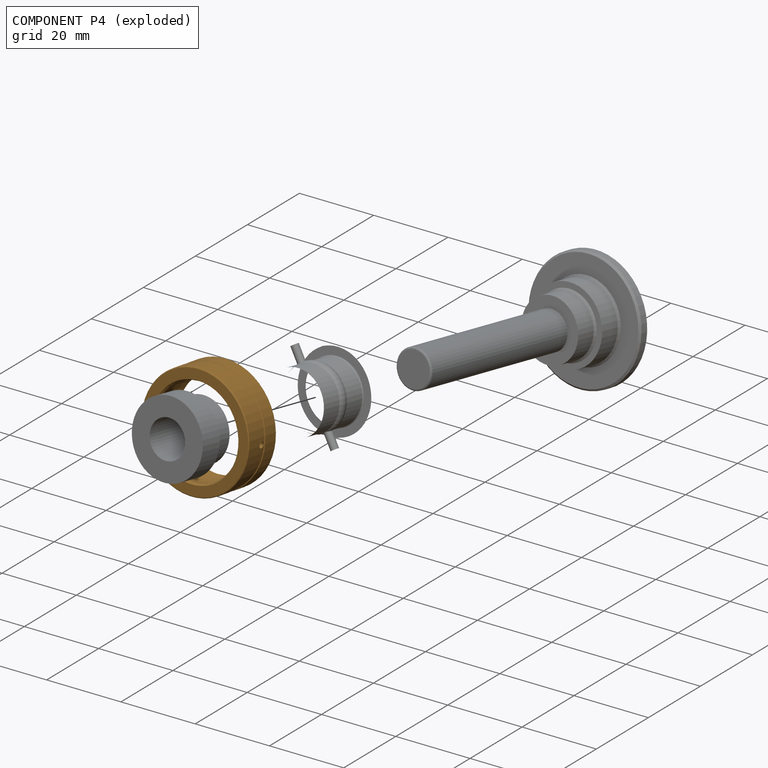
[diagram: component P4 — exploded]
COMPONENT P4 — geometry summary (no construction recipe available for this part):
  bounding box: 32.5 x 32.5 x 10.0 mm
  B-rep topology: 1 solid, 14 faces, 74 edges
  volume: 2355 mm^3 (22% of its bounding box)
  symmetry: 2-fold rotationally symmetric about the x axis; 2-fold rotationally symmetric about the y axis; 2-fold rotationally symmetric about the z axis; mirror-symmetric across its x mid-plane, y mid-plane, z mid-plane
Held by: BALL mate "Ball 1" to P1; BALL mate "Ball 1" to P1.
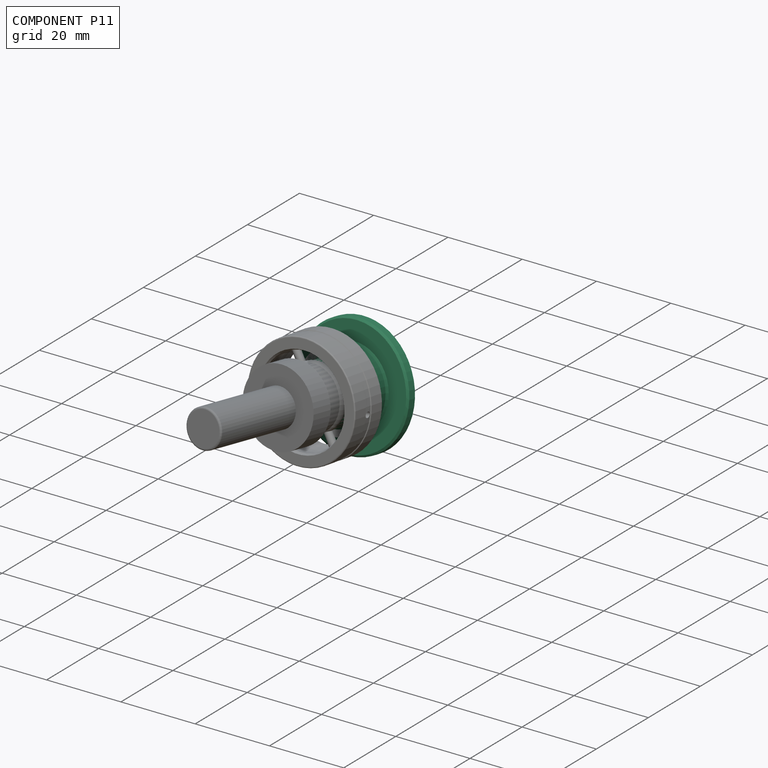
[diagram: component P11 — assembled]
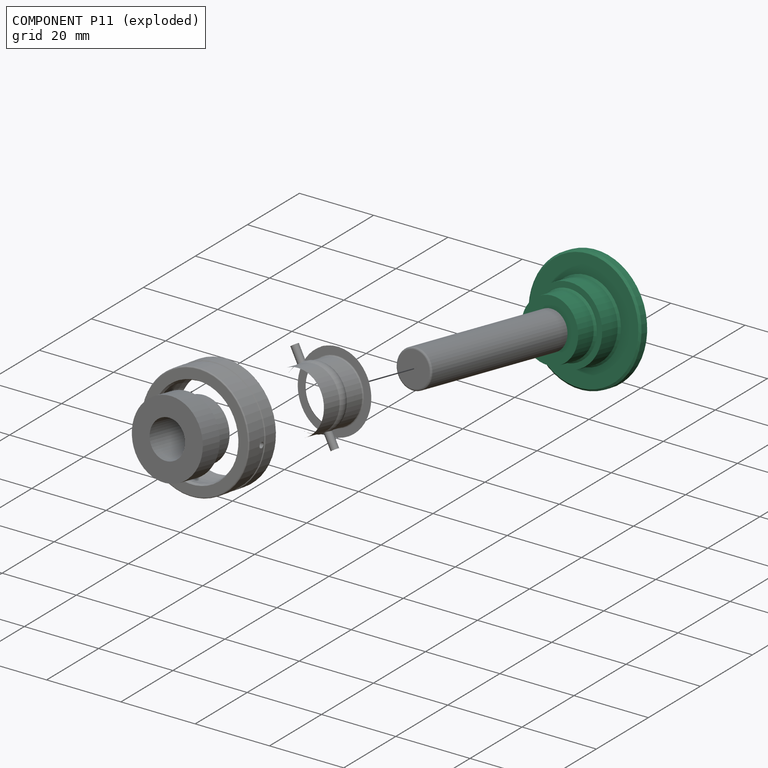
[diagram: component P11 — exploded]
COMPONENT P11 — recipe-attached (CADFS 00620202, mesh-verified: the recipe's output STEP matches this component's geometry to below the mesh-comparison resolution (tessellation chordal tolerance ~0.0712 mm)).
Held by: REVOLUTE mate "Revolute 1" to P6; CYLINDRICAL mate "Cylindrical 1" to P1; PLANAR mate "Planar 1" to P1; CYLINDRICAL mate "Cylindrical 1" to P1; PLANAR mate "Planar 1" to P1; REVOLUTE mate "Revolute 1" to P6.
Construction recipe (FeatureScript — the CAD program that rebuilds this solid; sketch coordinates are in the units given by the * unit suffixes, e.g. mm):

FeatureScript 1511;
import(path : "onshape/std/geometry.fs", version : "1511.0");
import(path : "onshape/std/common.fs", version : "1511.0");
const mm = millimeter;
const VERTEX = EntityType.VERTEX;
const EDGE = EntityType.EDGE;
const FACE = EntityType.FACE;
const BODY = EntityType.BODY;
function v(x, y){return vector(x, y);}
function OD(order){return orderDisambiguation(order);}
function OSD(set){return originalSetDisambiguation(set);}
function TD(topology){return topologyDisambiguation(topology);}
function TDD(query){return trueDependencyDisambiguation(query);}
function sQuery(a, b, c) {return sketchEntityQuery(a, b, c);}

annotation { "Feature Type Name" : "Feature", "Feature Type Description" : "" }
export const myFeature = defineFeature(function(context is Context, id is Id, definition is map)
    precondition{}
    {
        {
            var Q0;
            Q0=qCreatedBy(makeId("Front.planeOp"),FACE);
            var sketch = newSketch(context, id + "F0", { "sketchPlane" : qUnion([Q0])});
            skLineSegment(sketch, "E0", {"start": v(0, 0) * mm, "end": v(0, 16.14) * mm, "construction": true});
            skLineSegment(sketch, "E1", {"start": v(-5, 0) * mm, "end": v(-5, 15) * mm, "construction": true});
            skLineSegment(sketch, "E2", {"start": v(-5, 15) * mm, "end": v(-15.92, 15) * mm, "construction": true});
            skLineSegment(sketch, "E3", {"start": v(-10, 12) * mm, "end": v(-10, 6) * mm});
            skLineSegment(sketch, "E4", {"start": v(-10, 6) * mm, "end": v(-8, 6) * mm});
            skLineSegment(sketch, "E5", {"start": v(-8, 6) * mm, "end": v(-8, 0) * mm});
            skLineSegment(sketch, "E6", {"start": v(-8, 0) * mm, "end": v(-5, 0) * mm});
            skLineSegment(sketch, "E7", {"start": v(-8, 15) * mm, "end": v(-8, 9.5) * mm});
            skLineSegment(sketch, "E8", {"start": v(-7.5, 9) * mm, "end": v(-5, 9) * mm});
            skLineSegment(sketch, "E9", {"start": v(-5, 9) * mm, "end": v(-5, 0) * mm, "construction": true});
            skPoint(sketch, "E10.visualSharp", {"position": v(-8, 9) * mm});
            skArc(sketch, "E10.filletArc", {"start": v(-8, 9.5) * mm, "mid": v(-7.85, 9.15) * mm, "end": v(-7.5, 9) * mm});
            skLineSegment(sketch, "E11", {"start": v(-5, 9) * mm, "end": v(-5, 0) * mm});
            skLineSegment(sketch, "E12", {"start": v(-15.92, 15) * mm, "end": v(-15.92, 12) * mm});
            skLineSegment(sketch, "E13", {"start": v(-15.92, 12) * mm, "end": v(-10, 12) * mm});
            skLineSegment(sketch, "E14", {"start": v(-8, 15) * mm, "end": v(-15.92, 15) * mm});
            skSolve(sketch);
        }
        {
            var Q0;
            Q0 = qSketchRegion(id + "F0", true);
            var Q1;
            Q1=sQuery(id+"F0.wireOp",EDGE,"E0");
            revolve(context, id + "F1", {"entities" : qUnion([Q0]), "axis" : qUnion([Q1]), "revolveType" : RevolveType.FULL});
        }
        {
            var Q0;
            Q0=makeQuery(id+"F1.opRevolve","SWEPT_EDGE",EDGE,{"disambiguationData":[OSD([sQuery(id+"F0.wireOp",EDGE,"E4"),sQuery(id+"F0.wireOp",EDGE,"E5")])]});
            chamfer(context, id + "F2", {"entities" : qUnion([Q0]), "width" : 0.5 * mm, "tangentPropagation" : true});
        }
        {
            var Q0;
            Q0=makeQuery(id+"F1.opRevolve","SWEPT_EDGE",EDGE,{"disambiguationData":[OSD([sQuery(id+"F0.wireOp",EDGE,"E12"),sQuery(id+"F0.wireOp",EDGE,"E13")])]});
            var Q1;
            Q1=makeQuery(id+"F1.opRevolve","SWEPT_EDGE",EDGE,{"disambiguationData":[OSD([sQuery(id+"F0.wireOp",EDGE,"E12"),sQuery(id+"F0.wireOp",EDGE,"E14")])]});
            var Q2;
            Q2=makeQuery(id+"F1.opRevolve","SWEPT_EDGE",EDGE,{"disambiguationData":[OSD([sQuery(id+"F0.wireOp",EDGE,"E3"),sQuery(id+"F0.wireOp",EDGE,"E13")])]});
            chamfer(context, id + "F3", {"entities" : qUnion([Q0, Q1, Q2]), "width" : 0.5 * mm, "tangentPropagation" : true});
        }
    });
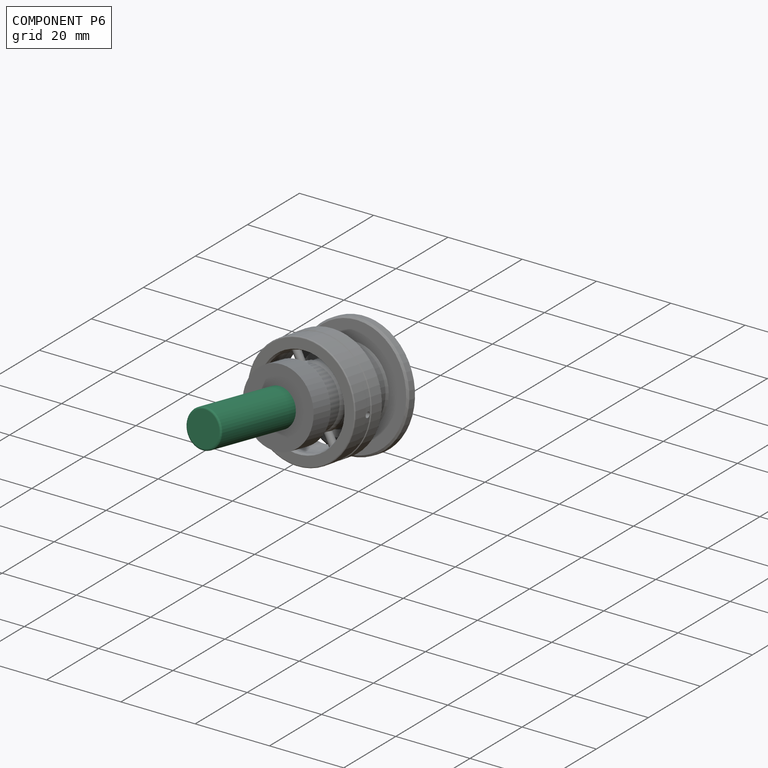
[diagram: component P6 — assembled]
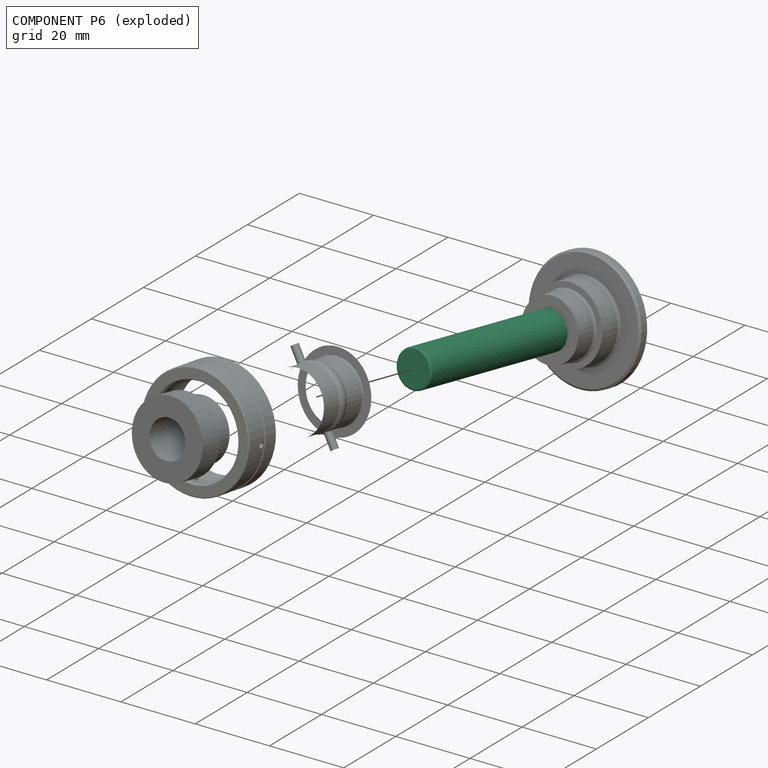
[diagram: component P6 — exploded]
COMPONENT P6 — recipe-attached (CADFS 00620203, mesh-verified: the recipe's output STEP matches this component's geometry to below the mesh-comparison resolution (tessellation chordal tolerance ~0.0961 mm)).
Held by: REVOLUTE mate "Revolute 1" to P11; REVOLUTE mate "Revolute 1" to P11.
Construction recipe (FeatureScript — the CAD program that rebuilds this solid; sketch coordinates are in the units given by the * unit suffixes, e.g. mm):

FeatureScript 1511;
import(path : "onshape/std/geometry.fs", version : "1511.0");
import(path : "onshape/std/common.fs", version : "1511.0");
const mm = millimeter;
const VERTEX = EntityType.VERTEX;
const EDGE = EntityType.EDGE;
const FACE = EntityType.FACE;
const BODY = EntityType.BODY;
function v(x, y){return vector(x, y);}
function OD(order){return orderDisambiguation(order);}
function OSD(set){return originalSetDisambiguation(set);}
function TD(topology){return topologyDisambiguation(topology);}
function TDD(query){return trueDependencyDisambiguation(query);}
function sQuery(a, b, c) {return sketchEntityQuery(a, b, c);}

annotation { "Feature Type Name" : "Feature", "Feature Type Description" : "" }
export const myFeature = defineFeature(function(context is Context, id is Id, definition is map)
    precondition{}
    {
        {
            var Q0;
            Q0=qCreatedBy(makeId("Right.planeOp"),FACE);
            var sketch = newSketch(context, id + "F0", { "sketchPlane" : qUnion([Q0])});
            skLineSegment(sketch, "E0", {"start": v(0, 0) * mm, "end": v(0, -60) * mm, "construction": true});
            skLineSegment(sketch, "E1", {"start": v(0, 0) * mm, "end": v(-7.95, 0) * mm});
            skLineSegment(sketch, "E2", {"start": v(-7.95, 0) * mm, "end": v(-7.95, -10) * mm});
            skLineSegment(sketch, "E3", {"start": v(-7.95, -10) * mm, "end": v(-5, -10) * mm});
            skLineSegment(sketch, "E4", {"start": v(-5, -10) * mm, "end": v(-5, -60) * mm});
            skLineSegment(sketch, "E5", {"start": v(-5, -60) * mm, "end": v(0, -60) * mm});
            skLineSegment(sketch, "E6", {"start": v(0, 0) * mm, "end": v(0, -60) * mm});
            skSolve(sketch);
        }
        {
            var Q0;
            Q0=makeQuery(id+"F0.imprint","IMPRINT",FACE,{"disambiguationData":[TD([[makeQuery(id+"F0.imprint","IMPRINT",EDGE,{"derivedFrom":sQuery(id+"F0.wireOp",EDGE,"E1")}),1.0]])]});
            var Q1;
            Q1=sQuery(id+"F0.wireOp",EDGE,"E6");
            revolve(context, id + "F1", {"entities" : qUnion([Q0]), "axis" : qUnion([Q1]), "revolveType" : RevolveType.FULL});
        }
        {
            var Q0;
            Q0=makeQuery(id+"F1.opRevolve","SWEPT_FACE",FACE,{"disambiguationData":[OSD([sQuery(id+"F0.wireOp",EDGE,"E1")])]});
            var sketch = newSketch(context, id + "F2", { "sketchPlane" : qUnion([Q0])});
            skCircle(sketch, "E7.cCircle", {"center": v(0, 0) * mm, "radius": 4 * mm, "construction": true});
            skLineSegment(sketch, "E7.0", {"start": v(-4.62, -0.04) * mm, "end": v(-2.34, 3.98) * mm});
            skLineSegment(sketch, "E7.1", {"start": v(-2.34, 3.98) * mm, "end": v(2.28, 4.02) * mm});
            skLineSegment(sketch, "E7.2", {"start": v(2.28, 4.02) * mm, "end": v(4.62, 0.04) * mm});
            skLineSegment(sketch, "E7.3", {"start": v(4.62, 0.04) * mm, "end": v(2.34, -3.98) * mm});
            skLineSegment(sketch, "E7.4", {"start": v(2.34, -3.98) * mm, "end": v(-2.28, -4.02) * mm});
            skLineSegment(sketch, "E7.5", {"start": v(-2.28, -4.02) * mm, "end": v(-4.62, -0.04) * mm});
            skPoint(sketch, "E7.0.midPoint", {"position": v(-3.48, 1.97) * mm});
            skSolve(sketch);
        }
        {
            var Q0;
            Q0=makeQuery(id+"F2.imprint","IMPRINT",FACE,{"disambiguationData":[TD([[makeQuery(id+"F2.imprint","IMPRINT",EDGE,{"derivedFrom":sQuery(id+"F2.wireOp",EDGE,"E7.0")}),-1.0]])]});
            extrude(context, id + "F3", {"entities" : qUnion([Q0]), "operationType" : NewBodyOperationType.REMOVE, "oppositeDirection" : true, "depth" : 8 * mm, "offsetDistance" : 25 * mm});
        }
        {
            var Q0;
            Q0=makeQuery(id+"F1.opRevolve","SWEPT_EDGE",EDGE,{"disambiguationData":[OSD([sQuery(id+"F0.wireOp",EDGE,"E1"),sQuery(id+"F0.wireOp",EDGE,"E2")])]});
            var Q1;
            Q1=makeQuery(id+"F1.opRevolve","SWEPT_EDGE",EDGE,{"disambiguationData":[OSD([sQuery(id+"F0.wireOp",EDGE,"E2"),sQuery(id+"F0.wireOp",EDGE,"E3")])]});
            fillet(context, id + "F4", {"entities" : qUnion([Q0, Q1]), "radius" : 0.4 * mm, "tangentPropagation" : true, "allowEdgeOverflow" : false});
        }
        {
            var Q0;
            Q0=makeQuery(id+"F1.opRevolve","SWEPT_EDGE",EDGE,{"disambiguationData":[OSD([sQuery(id+"F0.wireOp",EDGE,"E3"),sQuery(id+"F0.wireOp",EDGE,"E4")])]});
            var Q1;
            Q1=makeQuery(id+"F1.opRevolve","SWEPT_EDGE",EDGE,{"disambiguationData":[OSD([sQuery(id+"F0.wireOp",EDGE,"E4"),sQuery(id+"F0.wireOp",EDGE,"E5")])]});
            fillet(context, id + "F5", {"entities" : qUnion([Q0, Q1]), "radius" : 0.5 * mm, "tangentPropagation" : true, "allowEdgeOverflow" : false});
        }
    });
